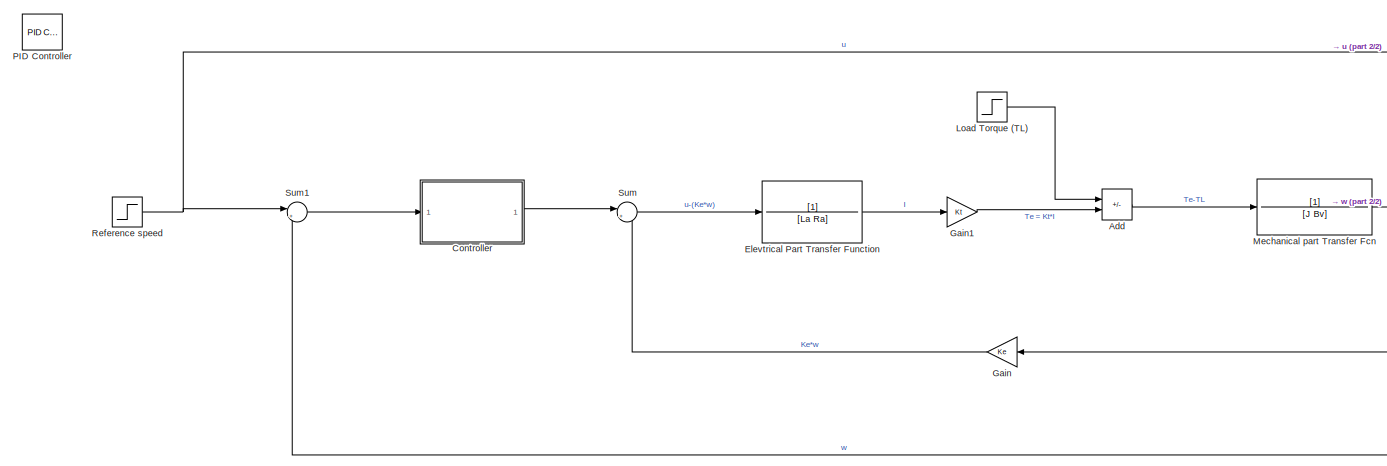
[diagram: root canvas - part 1/2, most of the canvas]
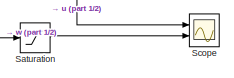
[diagram: root canvas - part 2/2, middle right region]
MODEL slx_6dbf2f9c00c5
KIND model
CONFIG AbsTol = auto
CONFIG EnableMultiTasking = off
CONFIG FixedStep = auto
CONFIG MaxStep = auto
CONFIG MinStep = auto
CONFIG RelTol = 1e-3
CONFIG SampleTimeConstraint = Unconstrained
CONFIG SolverName = VariableStepAuto
CONFIG StartTime = 0.0
CONFIG StopTime = 10.0
WORKSPACE source: mxarray member
WORKSPACE Bv = 0.004586
WORKSPACE J = 0.0002
WORKSPACE Kd = 1
WORKSPACE Ke = 0.0275
WORKSPACE Ki = 1
WORKSPACE Kp = 3
WORKSPACE Kt = 0.0275
WORKSPACE La = 0.0001
WORKSPACE Ra = 0.014
BLOCK [Sum] Add
  IconShape = rectangular
  Inputs = -+
  Ports = [2, 1]
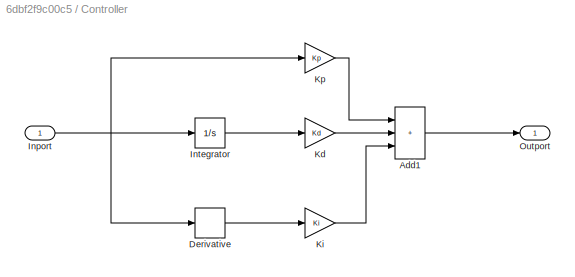
BLOCK [SubSystem] Controller
  Ports = [1, 1]
  RequestExecContextInheritance = off
BLOCK [Sum] Controller/Add1
  IconShape = rectangular
  Inputs = +++
  Ports = [3, 1]
BLOCK [Derivative] Controller/Derivative
BLOCK [Inport] Controller/Inport
BLOCK [Integrator] Controller/Integrator
  Ports = [1, 1]
BLOCK [Gain] Controller/Kd
  Gain = Kd
BLOCK [Gain] Controller/Ki
  Gain = Ki
BLOCK [Gain] Controller/Kp
  Gain = Kp
BLOCK [Outport] Controller/Outport
BLOCK [TransferFcn] Elevtrical Part Transfer  Function
  Denominator = [La Ra]
BLOCK [Gain] Gain
  Gain = Ke
  NameLocation = top
BLOCK [Gain] Gain1
  Gain = Kt
BLOCK [Step] Load Torque (TL)
  After = 30
  SampleTime = 0
BLOCK [TransferFcn] Mechanical part Transfer Fcn
  Denominator = [J Bv]
BLOCK [Reference] PID Controller  REF=pid_lib/PID Controller
  Commented = on
  Ports = [1, 1]
  SourceBlock = pid_lib/PID Controller
  SourceProductBaseCode = SL
  SourceType = PID 1dof
BLOCK [Step] Reference speed
  After = 40
  SampleTime = 0
BLOCK [Saturate] Saturation
  LowerLimit = 0
  UpperLimit = 100
BLOCK [Scope] Scope
  Floating = off
  NumInputPorts = 2
  Ports = [2]
  ScopeSpecificationString = Simulink.scopes.TimeScopeBlockCfg('CurrentConfiguration', extmgr.ConfigurationSet(extmgr.Configuration('Core','General UI',true),extmgr.Configuration('Core','Source UI',true),extmgr.Configuration('Sources','WiredSimulink',true),extmgr.Configuration('Visuals','Time Domain',true,'SerializedDisplays',{struct('MinYLimReal','-5.00000','MaxYLimReal','45.00000','YLabelReal','','MinYLimMag','0.00000','Max...<+2021ch>
BLOCK [Sum] Sum
  Inputs = |+-
  Ports = [2, 1]
BLOCK [Sum] Sum1
  Inputs = |+-
  Ports = [2, 1]
LINE Add:1 -> Mechanical part Transfer Fcn:1
LINE Controller/Add1:1 -> Controller/Outport:1
LINE Controller/Derivative:1 -> Controller/Ki:1
NET Controller/Inport:1 -> Controller/Derivative:1, Controller/Integrator:1, Controller/Kp:1
LINE Controller/Integrator:1 -> Controller/Kd:1
LINE Controller/Kd:1 -> Controller/Add1:2
LINE Controller/Ki:1 -> Controller/Add1:3
LINE Controller/Kp:1 -> Controller/Add1:1
LINE Controller:1 -> Sum:1
LINE Elevtrical Part Transfer  Function:1 -> Gain1:1
LINE Gain1:1 -> Add:2
LINE Gain:1 -> Sum:2
LINE Load Torque (TL):1 -> Add:1
NET Mechanical part Transfer Fcn:1 -> Gain:1, Saturation:1, Sum1:2
NET Reference speed:1 -> Scope:1, Sum1:1
LINE Saturation:1 -> Scope:2
LINE Sum1:1 -> Controller:1
LINE Sum:1 -> Elevtrical Part Transfer  Function:1
note: NET lines group one-source signal fan-out (src -> all destinations, sorted); 1:1 wires keep LINE
